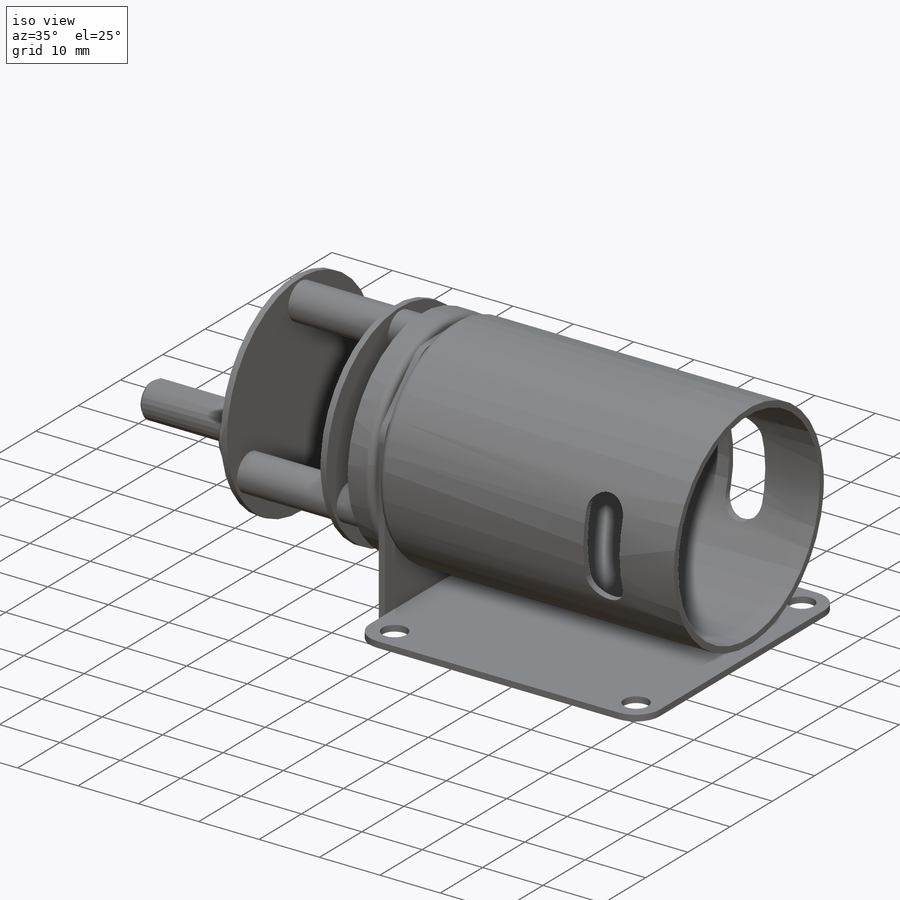
[diagram: iso view]
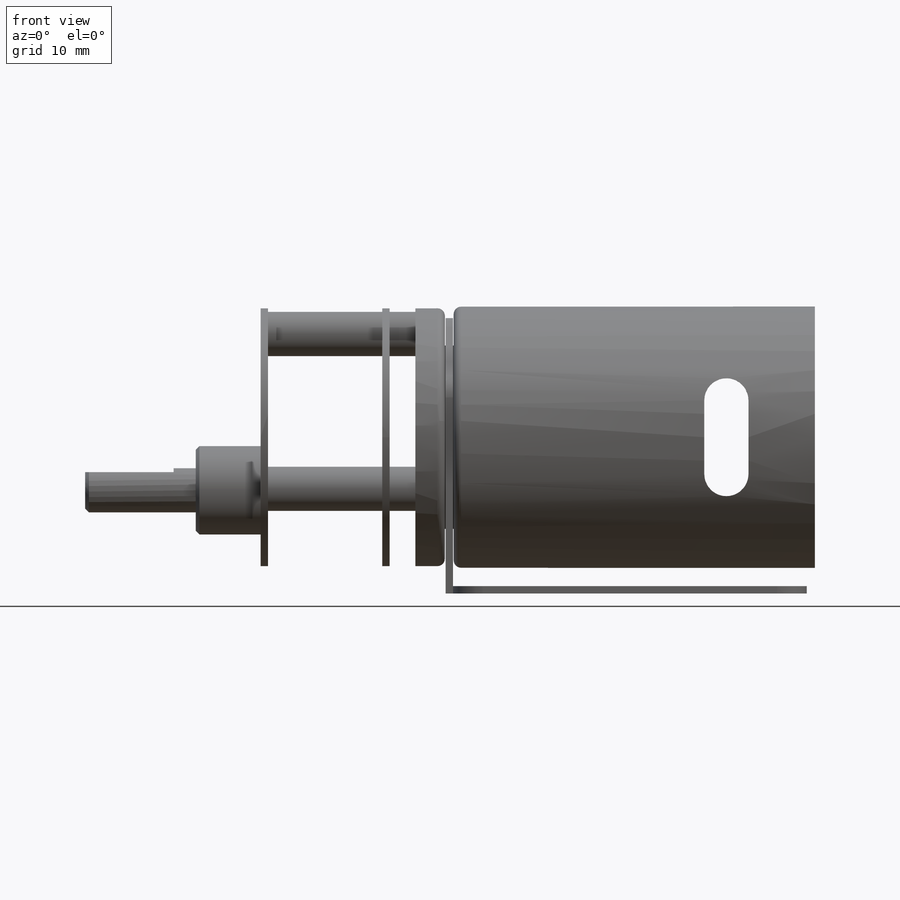
[diagram: front view]
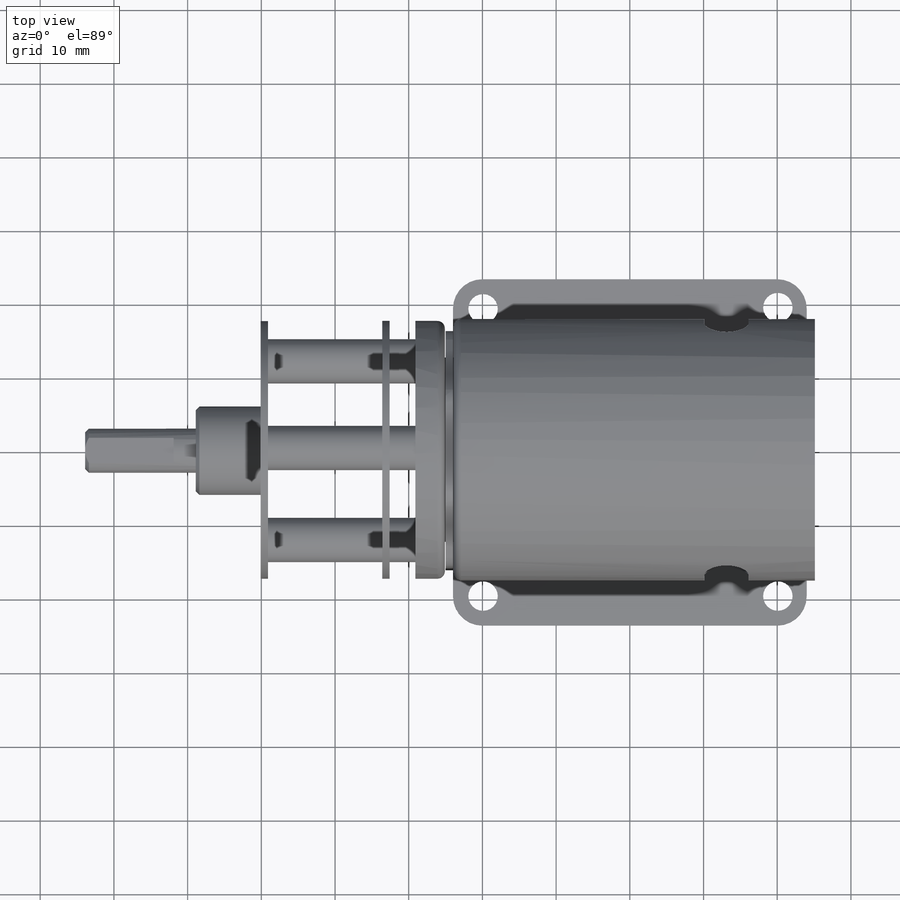
[diagram: top view]
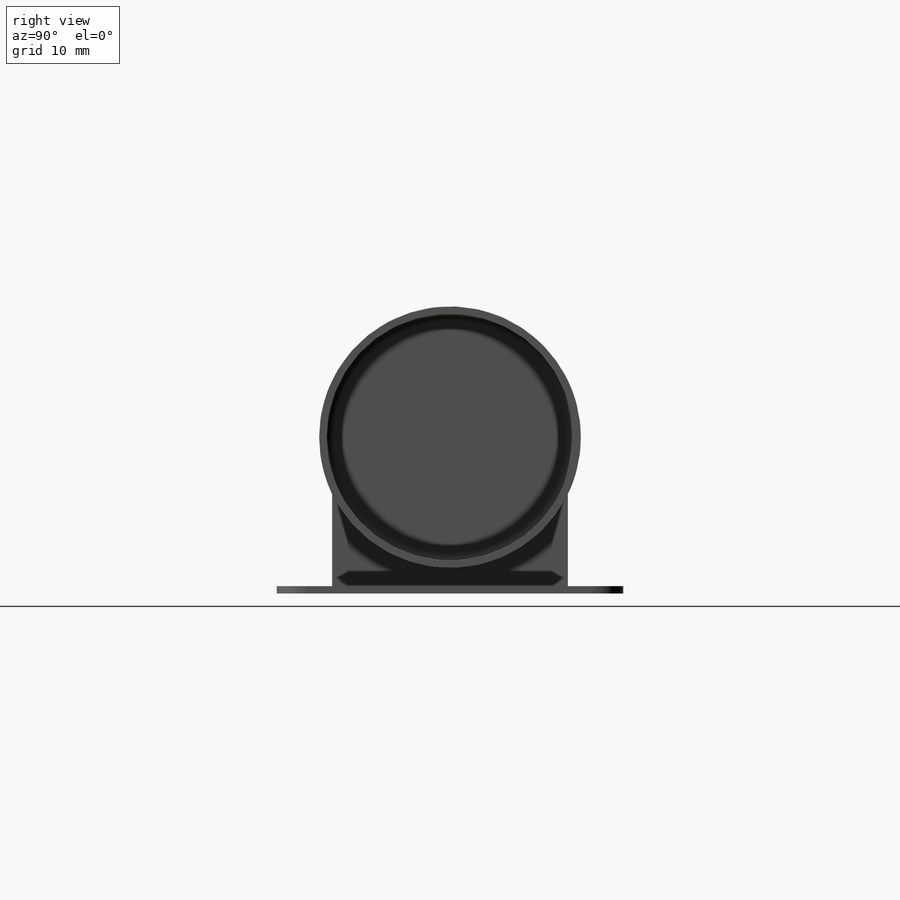
[diagram: right view]
SOLIDWORKS PART (.sldprt)
format: sldprt  version: not decoded by parser v0  size: 736,768 bytes
history: native  units: mm
features: sketch x14, extrude x11, cut_extrude x3, plane x2, material x1, fillet x1, chamfer x1 (+15 scaffold rows collapsed)
feature tree (48):
  scaffold x15  (default folders/planes/origin — collapsed)
  material  "Material <not specified>"
  sketch  "Sketch1"  dims[D3=4.0mm D4=4.0mm D5=4.0mm D6=4.0mm D9=4.0mm D1=48.0mm D2=47.0mm D7=39.0mm D8=40.0mm]
  extrude  "Extrude1"  Depth=1mm
  sketch  "Sketch2"  dims[D1=32.0mm D2=1.0mm]
  extrude  "Extrude2"  Depth=38mm
  sketch  "Sketch3"  dims[D1=25.0mm D2=21.2mm]
  extrude  "Extrude3"  Depth=0.1mm
  sketch  "Sketch4"  dims[D1=35.5mm]
  extrude  "Extrude4"  Depth=1mm
  sketch  "Sketch5"  dims[D1=1.0mm]
  extrude  "Extrude5"  Depth=48mm
  sketch  "Sketch6"  dims[c1.D5=3.0mm c1.D6=3.0mm c1.D1=6.0mm c1.D2=16.0mm c1.D3=9.0mm c1.D4=21.2mm c2.D1=10.0mm]
  cut_extrude  "Cut-Extrude1"  Depth=48mm
  sketch  "Sketch7"  dims[D1=35.0mm]
  extrude  "Extrude6"  Depth=4mm
  sketch  "Sketch8"  dims[c1.D1=6.0mm c1.D2=6.0mm c1.D3=6.0mm c2.D1=~19.856295mm c2.D4=14.0mm c2.D5=14.0mm]
  extrude  "Extrude7"  Depth=21mm
  sketch  "Sketch9"
  extrude  "Extrude8"  Depth=1mm
  fillet  "Fillet1"  Radius=1mm
  sketch  "Sketch10"  dims[D1=12.0mm D2=14.0mm]
  plane  "Plane1"  Offset=84mm
  extrude  "Extrude9"  [1 undecoded]
  sketch  "Sketch12"  dims[D1=5.98mm]
  extrude  "Extrude10"  Depth=15mm
  chamfer  "Chamfer1"  Distance=0.5mm Angle=45deg
  sketch  "Sketch13"  dims[D1=2.46mm]
  cut_extrude  "Cut-Extrude2"  Depth=12mm
  plane  "Plane2"  Offset=3.5mm
  sketch  "Sketch14"
  extrude  "Extrude11"  Depth=1mm
  sketch  "Sketch15"  dims[D1=4.0mm]
  cut_extrude  "Cut-Extrude3"  Depth=1mm
decode coverage: 27 of 30 modeling features carry decoded parameters
note: ~ marks probable driven/reference dimensions
note: 1 parameter value undecoded
note: suppression state not decoded; provenance and decode notes live in map.json
